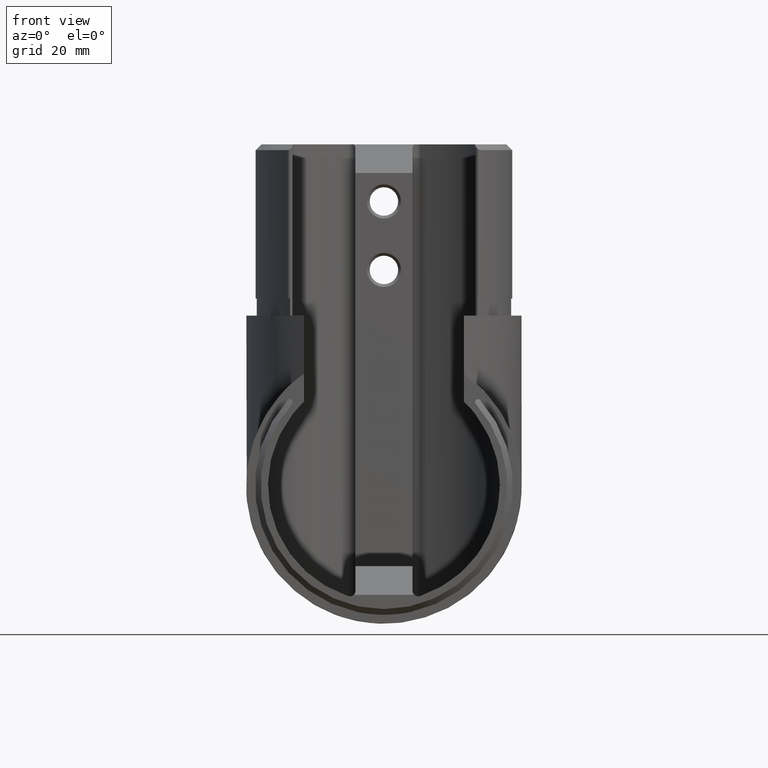
[diagram: clean part render]
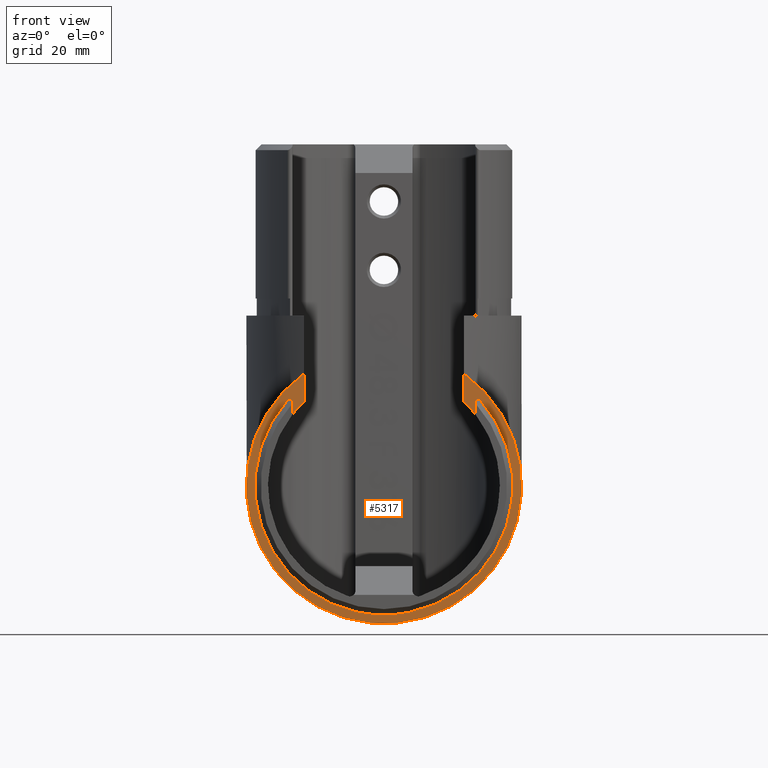
[diagram: same view with one face highlighted and labeled with its STEP entity id]
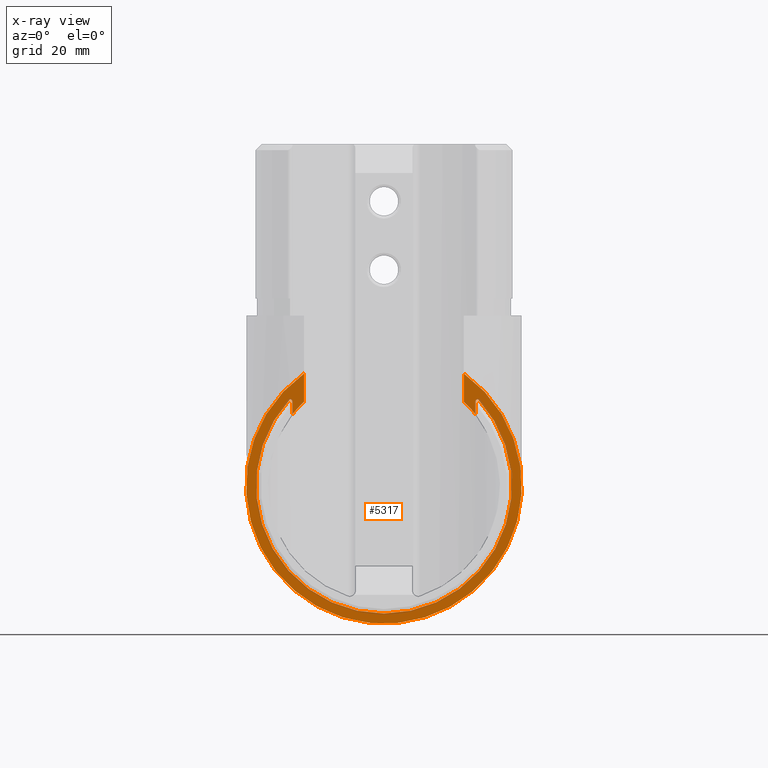
[diagram: x-ray of the same camera — body ghosted, the highlighted face saturated]
A machine part, front view. The second image highlights one B-rep face of the part: STEP entity #5317.
The next image is the same camera in x-ray: the body ghosted, the highlighted face saturated — about 10% of this face is hidden behind the body in this view.
In plain terms, the highlighted planar face has unit normal (0, 1, 0).
Its self-contained STEP definition (entity closure, byte-faithful):
#260 = EDGE_CURVE ( 'NONE', #14980, #4330, #18200, .T. ) ;
#1059 = AXIS2_PLACEMENT_3D ( 'NONE', #18301, #16381, #12772 ) ;
#1423 = CIRCLE ( 'NONE', #20702, 0.5000000000000004400 ) ;
#1775 = PLANE ( 'NONE',  #1059 ) ;
#2065 = ORIENTED_EDGE ( 'NONE', *, *, #19689, .T. ) ;
#2789 = CIRCLE ( 'NONE', #22546, 22.40000000000000600 ) ;
#2862 = ORIENTED_EDGE ( 'NONE', *, *, #260, .F. ) ;
#3015 = CARTESIAN_POINT ( 'NONE',  ( 16.45338357376951800, -7.834168549996043000E-017, 15.20020292543529900 ) ) ;
#3583 = CARTESIAN_POINT ( 'NONE',  ( -16.00000000000000400, 0.0000000000000000000, 12.57467693421981800 ) ) ;
#3693 = CARTESIAN_POINT ( 'NONE',  ( 14.00000000000000200, 0.0000000000000000000, 14.76897085107828100 ) ) ;
#3718 = CARTESIAN_POINT ( 'NONE',  ( 16.50000000000000400, 0.0000000000000000000, 14.70238075959128000 ) ) ;
#4070 = LINE ( 'NONE', #23606, #23550 ) ;
#4303 = EDGE_CURVE ( 'NONE', #20049, #22149, #4070, .T. ) ;
#4330 = VERTEX_POINT ( 'NONE', #3583 ) ;
#4846 = ORIENTED_EDGE ( 'NONE', *, *, #21123, .F. ) ;
#5304 = DIRECTION ( 'NONE',  ( -0.0000000000000000000, -1.000000000000000000, -0.0000000000000000000 ) ) ;
#5317 = ADVANCED_FACE ( 'NONE', ( #13489 ), #1775, .F. ) ;
#5356 = CIRCLE ( 'NONE', #12688, 24.14999999999999900 ) ;
#6004 = CARTESIAN_POINT ( 'NONE',  ( -14.00000000000000000, 0.0000000000000000000, 14.76897085107828300 ) ) ;
#6035 = EDGE_CURVE ( 'NONE', #19389, #13119, #1423, .T. ) ;
#6394 = VERTEX_POINT ( 'NONE', #11418 ) ;
#6556 = VERTEX_POINT ( 'NONE', #3015 ) ;
#6612 = DIRECTION ( 'NONE',  ( -0.0000000000000000000, -1.000000000000000000, -0.0000000000000000000 ) ) ;
#7482 = DIRECTION ( 'NONE',  ( 0.0000000000000000000, 1.000000000000000000, 0.0000000000000000000 ) ) ;
#7615 = ORIENTED_EDGE ( 'NONE', *, *, #21527, .F. ) ;
#7694 = CARTESIAN_POINT ( 'NONE',  ( -16.00000000000000400, 2.997001796651528900E-015, 14.70238075959128000 ) ) ;
#8058 = LINE ( 'NONE', #20002, #18966 ) ;
#8226 = CARTESIAN_POINT ( 'NONE',  ( 0.0000000000000000000, 0.0000000000000000000, 0.0000000000000000000 ) ) ;
#8340 = VERTEX_POINT ( 'NONE', #9593 ) ;
#8509 = CARTESIAN_POINT ( 'NONE',  ( 14.00000000000000200, 0.0000000000000000000, 19.67796991561883100 ) ) ;
#9593 = CARTESIAN_POINT ( 'NONE',  ( 16.00000000000000400, 2.997001796651528900E-015, 14.70238075959128000 ) ) ;
#9773 = ORIENTED_EDGE ( 'NONE', *, *, #4303, .F. ) ;
#9920 = DIRECTION ( 'NONE',  ( 0.0000000000000000000, 0.0000000000000000000, 1.000000000000000000 ) ) ;
#10203 = CARTESIAN_POINT ( 'NONE',  ( 0.0000000000000000000, 3.469446951953614200E-015, -3.469446951953614200E-015 ) ) ;
#10219 = CIRCLE ( 'NONE', #16722, 20.35000000000000100 ) ;
#10842 = DIRECTION ( 'NONE',  ( 0.0000000000000000000, -2.220446049250313100E-016, 1.000000000000000000 ) ) ;
#11418 = CARTESIAN_POINT ( 'NONE',  ( 16.00000000000000400, 3.469446951953614200E-015, 12.57467693421981300 ) ) ;
#11493 = CARTESIAN_POINT ( 'NONE',  ( -16.45338357376953200, 0.0000000000000000000, 15.20020292543516800 ) ) ;
#11605 = ORIENTED_EDGE ( 'NONE', *, *, #12581, .T. ) ;
#11772 = ORIENTED_EDGE ( 'NONE', *, *, #21639, .F. ) ;
#11776 = ORIENTED_EDGE ( 'NONE', *, *, #20789, .T. ) ;
#11808 = VERTEX_POINT ( 'NONE', #18628 ) ;
#11902 = DIRECTION ( 'NONE',  ( 0.0000000000000000000, 0.0000000000000000000, 1.000000000000000000 ) ) ;
#12581 = EDGE_CURVE ( 'NONE', #6394, #8340, #8058, .T. ) ;
#12688 = AXIS2_PLACEMENT_3D ( 'NONE', #13861, #22931, #9920 ) ;
#12772 = DIRECTION ( 'NONE',  ( 0.0000000000000000000, -0.0000000000000000000, 1.000000000000000000 ) ) ;
#13119 = VERTEX_POINT ( 'NONE', #7694 ) ;
#13442 = CIRCLE ( 'NONE', #20209, 0.5000000000000004400 ) ;
#13489 = FACE_OUTER_BOUND ( 'NONE', #14030, .T. ) ;
#13715 = LINE ( 'NONE', #23021, #21729 ) ;
#13861 = CARTESIAN_POINT ( 'NONE',  ( 0.0000000000000000000, 0.0000000000000000000, 0.0000000000000000000 ) ) ;
#14030 = EDGE_LOOP ( 'NONE', ( #23213, #9773, #7615, #11605, #2065, #11772, #21168, #11776, #2862, #4846 ) ) ;
#14090 = CARTESIAN_POINT ( 'NONE',  ( -16.50000000000000400, 0.0000000000000000000, 14.70238075959128000 ) ) ;
#14980 = VERTEX_POINT ( 'NONE', #6004 ) ;
#15943 = DIRECTION ( 'NONE',  ( -3.533762083002485800E-016, -0.0000000000000000000, 1.000000000000000000 ) ) ;
#16020 = DIRECTION ( 'NONE',  ( 0.0000000000000000000, 1.000000000000000000, 0.0000000000000000000 ) ) ;
#16381 = DIRECTION ( 'NONE',  ( 0.0000000000000000000, 1.000000000000000000, 0.0000000000000000000 ) ) ;
#16531 = AXIS2_PLACEMENT_3D ( 'NONE', #18147, #5304, #22075 ) ;
#16722 = AXIS2_PLACEMENT_3D ( 'NONE', #8226, #6612, #11902 ) ;
#18147 = CARTESIAN_POINT ( 'NONE',  ( 0.0000000000000000000, 0.0000000000000000000, 0.0000000000000000000 ) ) ;
#18200 = CIRCLE ( 'NONE', #16531, 20.35000000000000100 ) ;
#18301 = CARTESIAN_POINT ( 'NONE',  ( 0.0000000000000000000, 0.0000000000000000000, 0.0000000000000000000 ) ) ;
#18628 = CARTESIAN_POINT ( 'NONE',  ( -13.99999999999999800, 0.0000000000000000000, 19.67796991561883500 ) ) ;
#18966 = VECTOR ( 'NONE', #10842, 1000.000000000000000 ) ;
#19286 = DIRECTION ( 'NONE',  ( -0.0000000000000000000, -1.000000000000000000, -1.058152263001196400E-016 ) ) ;
#19389 = VERTEX_POINT ( 'NONE', #11493 ) ;
#19455 = VECTOR ( 'NONE', #23381, 1000.000000000000000 ) ;
#19689 = EDGE_CURVE ( 'NONE', #8340, #6556, #13442, .T. ) ;
#19778 = DIRECTION ( 'NONE',  ( 0.0000000000000000000, 0.0000000000000000000, 1.000000000000000000 ) ) ;
#20002 = CARTESIAN_POINT ( 'NONE',  ( 16.00000000000000400, 3.469446951953614200E-015, 12.57467693421981300 ) ) ;
#20049 = VERTEX_POINT ( 'NONE', #3693 ) ;
#20209 = AXIS2_PLACEMENT_3D ( 'NONE', #3718, #7482, #21916 ) ;
#20702 = AXIS2_PLACEMENT_3D ( 'NONE', #14090, #16020, #19778 ) ;
#20789 = EDGE_CURVE ( 'NONE', #13119, #4330, #13715, .T. ) ;
#21006 = EDGE_CURVE ( 'NONE', #22149, #11808, #5356, .T. ) ;
#21123 = EDGE_CURVE ( 'NONE', #11808, #14980, #22317, .T. ) ;
#21168 = ORIENTED_EDGE ( 'NONE', *, *, #6035, .T. ) ;
#21309 = CARTESIAN_POINT ( 'NONE',  ( -14.00000000000000000, 0.0000000000000000000, 14.76897085107828300 ) ) ;
#21527 = EDGE_CURVE ( 'NONE', #6394, #20049, #10219, .T. ) ;
#21639 = EDGE_CURVE ( 'NONE', #19389, #6556, #2789, .T. ) ;
#21729 = VECTOR ( 'NONE', #23099, 1000.000000000000000 ) ;
#21916 = DIRECTION ( 'NONE',  ( 0.0000000000000000000, 0.0000000000000000000, 1.000000000000000000 ) ) ;
#22075 = DIRECTION ( 'NONE',  ( 0.0000000000000000000, 0.0000000000000000000, 1.000000000000000000 ) ) ;
#22149 = VERTEX_POINT ( 'NONE', #8509 ) ;
#22317 = LINE ( 'NONE', #21309, #19455 ) ;
#22546 = AXIS2_PLACEMENT_3D ( 'NONE', #10203, #19286, #23052 ) ;
#22931 = DIRECTION ( 'NONE',  ( 0.0000000000000000000, 1.000000000000000000, 0.0000000000000000000 ) ) ;
#23021 = CARTESIAN_POINT ( 'NONE',  ( -16.00000000000000400, 3.469446951953614200E-015, 12.57467693421981300 ) ) ;
#23052 = DIRECTION ( 'NONE',  ( 0.0000000000000000000, 1.058152263001196300E-016, -1.000000000000000000 ) ) ;
#23099 = DIRECTION ( 'NONE',  ( 0.0000000000000000000, 2.220446049250313100E-016, -1.000000000000000000 ) ) ;
#23213 = ORIENTED_EDGE ( 'NONE', *, *, #21006, .F. ) ;
#23381 = DIRECTION ( 'NONE',  ( -3.533762083002485800E-016, -0.0000000000000000000, -1.000000000000000000 ) ) ;
#23550 = VECTOR ( 'NONE', #15943, 1000.000000000000000 ) ;
#23606 = CARTESIAN_POINT ( 'NONE',  ( 14.00000000000000200, 0.0000000000000000000, 19.67796991561883100 ) ) ;